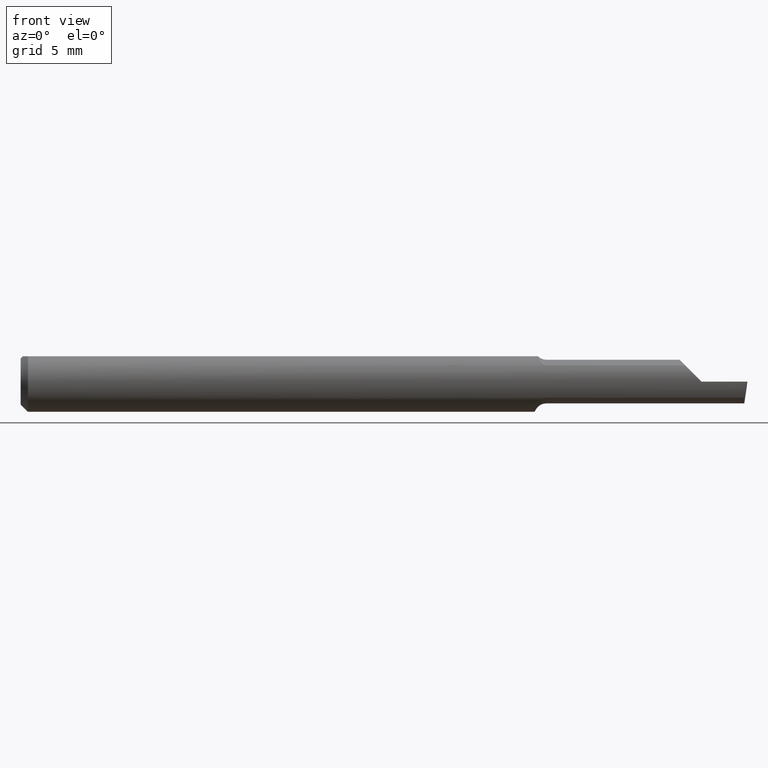
[diagram: clean part render]
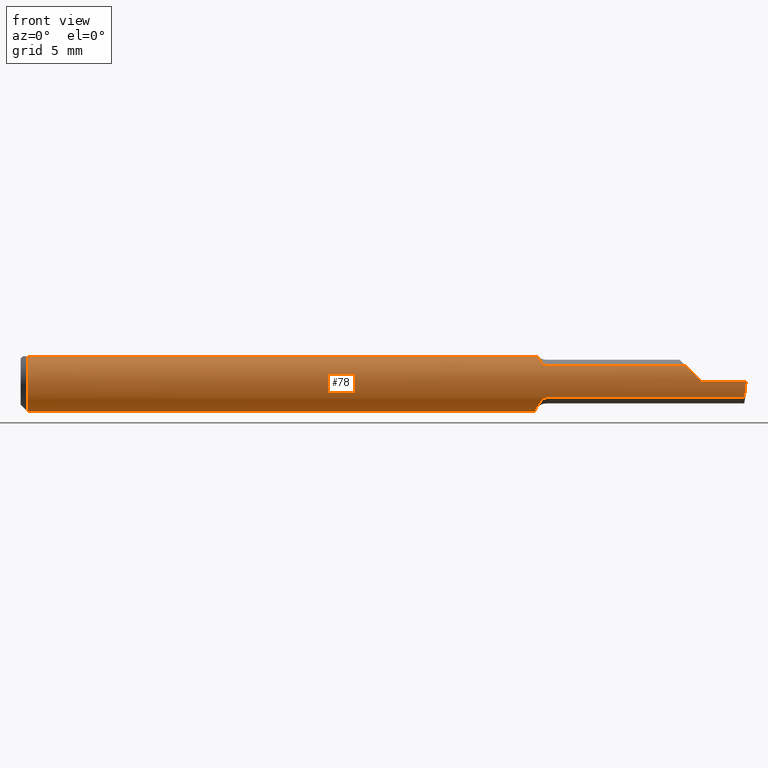
[diagram: same view with one face highlighted and labeled with its STEP entity id]
A machine part, front view. The second image highlights one B-rep face of the part: STEP entity #78.
In plain terms, the highlighted cylindrical surface (edge-blend (fillet) strip) has radius 1.5837 mm, axis along (-1, -0, -0).
Its self-contained STEP definition (entity closure, byte-faithful):
#1 = DIRECTION ( 'NONE',  ( -1.000000000000000000, -0.0000000000000000000, -0.0000000000000000000 ) ) ;
#3 = VECTOR ( 'NONE', #328, 39.37007874015748143 ) ;
#5 = DIRECTION ( 'NONE',  ( 0.0000000000000000000, 0.0000000000000000000, 1.000000000000000000 ) ) ;
#6 = CARTESIAN_POINT ( 'NONE',  ( 1.074327038483182450, -0.04799382633214958893, -0.03989142061000427314 ) ) ;
#9 = CARTESIAN_POINT ( 'NONE',  ( 1.060000000000000275, 0.01155624999999986177, -0.06126969549408177451 ) ) ;
#15 = CARTESIAN_POINT ( 'NONE',  ( 1.074073837407041987, -0.04761084945882111674, 0.04033650601908232020 ) ) ;
#17 = AXIS2_PLACEMENT_3D ( 'NONE', #148, #1, #5 ) ;
#24 = EDGE_CURVE ( 'NONE', #335, #188, #344, .T. ) ;
#30 = B_SPLINE_CURVE_WITH_KNOTS ( 'NONE', 3,
 ( #589, #276, #435, #63, #378, #6, #324, #631, #272, #585, #223, #543, #162, #482 ),
 .UNSPECIFIED., .F., .F.,
 ( 4, 2, 2, 2, 2, 2, 4 ),
 ( 1.960001601931791046E-07, 0.0001315703184465652758, 0.0002629446367329374076, 0.0005256932733056817256, 0.001051190546451170795, 0.001576687819596659648, 0.002102185092742148934 ),
 .UNSPECIFIED. ) ;
#35 = CARTESIAN_POINT ( 'NONE',  ( 0.0000000000000000000, -0.03386738844375222768, 0.05234999999999997988 ) ) ;
#41 = VECTOR ( 'NONE', #346, 39.37007874015748143 ) ;
#62 = VERTEX_POINT ( 'NONE', #357 ) ;
#63 = CARTESIAN_POINT ( 'NONE',  ( 1.078775713346482146, -0.05116520334387903574, -0.03564627526859109191 ) ) ;
#67 = CARTESIAN_POINT ( 'NONE',  ( 0.01500000000000185039, -0.03386738844380016850, 0.05235000000000000070 ) ) ;
#70 = CARTESIAN_POINT ( 'NONE',  ( 1.252500000000000169, -0.05267366071428577351, -0.03336177403790612644 ) ) ;
#71 = ORIENTED_EDGE ( 'NONE', *, *, #376, .F. ) ;
#73 = ORIENTED_EDGE ( 'NONE', *, *, #271, .F. ) ;
#74 = AXIS2_PLACEMENT_3D ( 'NONE', #288, #596, #234 ) ;
#78 = ADVANCED_FACE ( 'NONE', ( #268 ), #88, .T. ) ;
#82 = VERTEX_POINT ( 'NONE', #208 ) ;
#88 = CYLINDRICAL_SURFACE ( 'NONE', #201, 0.06235000000000000264 ) ;
#91 = ORIENTED_EDGE ( 'NONE', *, *, #415, .F. ) ;
#95 = ORIENTED_EDGE ( 'NONE', *, *, #499, .F. ) ;
#96 = VERTEX_POINT ( 'NONE', #414 ) ;
#99 = CARTESIAN_POINT ( 'NONE',  ( 0.0000000000000000000, 0.03386738844375223462, 0.05234999999999997988 ) ) ;
#101 = VERTEX_POINT ( 'NONE', #231 ) ;
#106 = VECTOR ( 'NONE', #196, 39.37007874015748143 ) ;
#109 = CARTESIAN_POINT ( 'NONE',  ( 1.494656860756163663, -0.05903713403021957490, -0.02331472336167221548 ) ) ;
#111 = DIRECTION ( 'NONE',  ( 0.0000000000000000000, 0.0000000000000000000, 1.000000000000000000 ) ) ;
#118 = VERTEX_POINT ( 'NONE', #9 ) ;
#122 = CIRCLE ( 'NONE', #391, 0.06235000000000000264 ) ;
#132 = EDGE_CURVE ( 'NONE', #62, #82, #401, .T. ) ;
#148 = CARTESIAN_POINT ( 'NONE',  ( 0.01500000000000000465, 0.0000000000000000000, 0.0000000000000000000 ) ) ;
#154 = LINE ( 'NONE', #553, #444 ) ;
#155 = CARTESIAN_POINT ( 'NONE',  ( 0.01500000000000000465, 0.0000000000000000000, 0.0000000000000000000 ) ) ;
#160 = EDGE_CURVE ( 'NONE', #266, #355, #398, .T. ) ;
#162 = CARTESIAN_POINT ( 'NONE',  ( 1.059999999999996056, 0.004792881695547039807, -0.06254535345742004426 ) ) ;
#171 = CARTESIAN_POINT ( 'NONE',  ( 1.381685276638327631, -0.05903713403021959572, 0.02331472336167217385 ) ) ;
#177 = CIRCLE ( 'NONE', #74, 0.06235000000000000264 ) ;
#182 = LINE ( 'NONE', #35, #41 ) ;
#188 = VERTEX_POINT ( 'NONE', #67 ) ;
#191 = ORIENTED_EDGE ( 'NONE', *, *, #599, .T. ) ;
#196 = DIRECTION ( 'NONE',  ( 1.000000000000000000, 5.691349986800549142E-18, 0.0000000000000000000 ) ) ;
#201 = AXIS2_PLACEMENT_3D ( 'NONE', #218, #377, #380 ) ;
#206 = VERTEX_POINT ( 'NONE', #420 ) ;
#207 = EDGE_LOOP ( 'NONE', ( #317, #323, #214, #675, #279, #95, #191, #672, #91, #529, #73, #71 ) ) ;
#208 = CARTESIAN_POINT ( 'NONE',  ( 1.497433779686219379, -0.06235000000000005121, 3.231995301756449018E-19 ) ) ;
#211 = EDGE_CURVE ( 'NONE', #62, #206, #459, .T. ) ;
#214 = ORIENTED_EDGE ( 'NONE', *, *, #284, .T. ) ;
#218 = CARTESIAN_POINT ( 'NONE',  ( 0.0000000000000000000, 0.0000000000000000000, 0.0000000000000000000 ) ) ;
#223 = CARTESIAN_POINT ( 'NONE',  ( 1.061648092746324767, -0.01564147840104310530, -0.06074236086770339743 ) ) ;
#231 = CARTESIAN_POINT ( 'NONE',  ( 1.371638225962093838, -0.05267366071428578739, 0.03336177403790611951 ) ) ;
#234 = DIRECTION ( 'NONE',  ( 0.0000000000000000000, 1.000000000000000000, 0.0000000000000000000 ) ) ;
#266 = VERTEX_POINT ( 'NONE', #412 ) ;
#268 = FACE_OUTER_BOUND ( 'NONE', #207, .T. ) ;
#271 = EDGE_CURVE ( 'NONE', #118, #355, #177, .T. ) ;
#272 = CARTESIAN_POINT ( 'NONE',  ( 1.065988988117221536, -0.03406974560157229048, -0.05264335079965579145 ) ) ;
#276 = CARTESIAN_POINT ( 'NONE',  ( 1.083240954672475720, -0.05267366071428582208, -0.03336177403790606399 ) ) ;
#279 = ORIENTED_EDGE ( 'NONE', *, *, #448, .F. ) ;
#281 = CARTESIAN_POINT ( 'NONE',  ( 0.01500000000000000465, 0.0000000000000000000, -0.06235000000000000264 ) ) ;
#284 = EDGE_CURVE ( 'NONE', #82, #96, #154, .T. ) ;
#288 = CARTESIAN_POINT ( 'NONE',  ( 1.060000000000000275, 0.0000000000000000000, 0.0000000000000000000 ) ) ;
#299 = CARTESIAN_POINT ( 'NONE',  ( 1.075661082963681459, -0.04915643512136035759, 0.03841395140597855112 ) ) ;
#317 = ORIENTED_EDGE ( 'NONE', *, *, #211, .F. ) ;
#323 = ORIENTED_EDGE ( 'NONE', *, *, #132, .T. ) ;
#324 = CARTESIAN_POINT ( 'NONE',  ( 1.072612635401776870, -0.04600867268841651869, -0.04219264322731248323 ) ) ;
#328 = DIRECTION ( 'NONE',  ( -1.000000000000000000, -5.691349986800549142E-18, -0.0000000000000000000 ) ) ;
#329 = CARTESIAN_POINT ( 'NONE',  ( 1.060000000000000275, 0.03386738844375224156, 0.05235000000000000070 ) ) ;
#335 = VERTEX_POINT ( 'NONE', #281 ) ;
#343 = CARTESIAN_POINT ( 'NONE',  ( 1.069899083742320345, -0.04251446938472881742, 0.04588310374207918430 ) ) ;
#344 = CIRCLE ( 'NONE', #17, 0.06235000000000000264 ) ;
#346 = DIRECTION ( 'NONE',  ( -1.000000000000000000, -0.0000000000000000000, -0.0000000000000000000 ) ) ;
#354 = EDGE_CURVE ( 'NONE', #96, #101, #471, .T. ) ;
#355 = VERTEX_POINT ( 'NONE', #329 ) ;
#357 = CARTESIAN_POINT ( 'NONE',  ( 1.493589448587071544, -0.05267366071428577351, -0.03336177403790612644 ) ) ;
#364 = LINE ( 'NONE', #512, #106 ) ;
#365 = VECTOR ( 'NONE', #532, 39.37007874015748143 ) ;
#376 = EDGE_CURVE ( 'NONE', #206, #118, #30, .T. ) ;
#377 = DIRECTION ( 'NONE',  ( -1.000000000000000000, -0.0000000000000000000, -0.0000000000000000000 ) ) ;
#378 = CARTESIAN_POINT ( 'NONE',  ( 1.077568494155622725, -0.05043275970182654888, -0.03668598949093540562 ) ) ;
#380 = DIRECTION ( 'NONE',  ( 0.0000000000000000000, 0.0000000000000000000, 1.000000000000000000 ) ) ;
#384 = CARTESIAN_POINT ( 'NONE',  ( 1.393107270290912858, -0.06235000000000000264, 0.01189272970908752079 ) ) ;
#391 = AXIS2_PLACEMENT_3D ( 'NONE', #155, #476, #111 ) ;
#398 = LINE ( 'NONE', #99, #365 ) ;
#401 =( BOUNDED_CURVE ( )  B_SPLINE_CURVE ( 3, ( #624, #109, #528, #525 ),
 .UNSPECIFIED., .F., .F. ) 
 B_SPLINE_CURVE_WITH_KNOTS ( ( 4, 4 ),
 ( 0.7961532496683338955, 1.360746882514885181 ),
 .UNSPECIFIED. ) 
 CURVE ( )  GEOMETRIC_REPRESENTATION_ITEM ( )  RATIONAL_B_SPLINE_CURVE ( ( 1.000000000000000000, 0.9736121104788255654, 0.9736121104788255654, 1.000000000000000000 ) ) 
 REPRESENTATION_ITEM ( '' )  );
#412 = CARTESIAN_POINT ( 'NONE',  ( 0.01500000000000000465, 0.03386738844375223462, 0.05234999999999997988 ) ) ;
#414 = CARTESIAN_POINT ( 'NONE',  ( 1.405000000000000249, -0.06235000000000005121, 1.163414459189985436E-17 ) ) ;
#415 = EDGE_CURVE ( 'NONE', #266, #335, #122, .T. ) ;
#420 = CARTESIAN_POINT ( 'NONE',  ( 1.085000000000000187, -0.05267366071428582208, -0.03336177403790606399 ) ) ;
#425 = CARTESIAN_POINT ( 'NONE',  ( 1.066182189689074633, -0.03386738844375222074, 0.05235000000000000070 ) ) ;
#426 = VERTEX_POINT ( 'NONE', #425 ) ;
#435 = CARTESIAN_POINT ( 'NONE',  ( 1.081592203943254615, -0.05228879390856558396, -0.03397671269166894353 ) ) ;
#444 = VECTOR ( 'NONE', #645, 39.37007874015748143 ) ;
#448 = EDGE_CURVE ( 'NONE', #479, #101, #364, .T. ) ;
#451 = B_SPLINE_CURVE_WITH_KNOTS ( 'NONE', 3,
 ( #592, #652, #343, #15, #299, #659, #656, #511, #508, #492 ),
 .UNSPECIFIED., .F., .F.,
 ( 4, 2, 2, 2, 4 ),
 ( 3.797231421916798275E-07, 0.0004333373953855909145, 0.0006498162315072879497, 0.0007580556495681328895, 0.0008662950676289779377 ),
 .UNSPECIFIED. ) ;
#459 = LINE ( 'NONE', #70, #3 ) ;
#471 =( BOUNDED_CURVE ( )  B_SPLINE_CURVE ( 3, ( #635, #384, #171, #486 ),
 .UNSPECIFIED., .F., .T. ) 
 B_SPLINE_CURVE_WITH_KNOTS ( ( 4, 4 ),
 ( 4.712388980384689674, 5.276982613231239405 ),
 .UNSPECIFIED. ) 
 CURVE ( )  GEOMETRIC_REPRESENTATION_ITEM ( )  RATIONAL_B_SPLINE_CURVE ( ( 1.000000000000000000, 0.9736121104788257874, 0.9736121104788257874, 1.000000000000000000 ) ) 
 REPRESENTATION_ITEM ( '' )  );
#476 = DIRECTION ( 'NONE',  ( -1.000000000000000000, -0.0000000000000000000, -0.0000000000000000000 ) ) ;
#479 = VERTEX_POINT ( 'NONE', #542 ) ;
#482 = CARTESIAN_POINT ( 'NONE',  ( 1.060000000000000275, 0.01155624999999986177, -0.06126969549408177451 ) ) ;
#486 = CARTESIAN_POINT ( 'NONE',  ( 1.371638225962093838, -0.05267366071428578739, 0.03336177403790611951 ) ) ;
#492 = CARTESIAN_POINT ( 'NONE',  ( 1.085000000000000187, -0.05267366071428583596, 0.03336177403790603624 ) ) ;
#499 = EDGE_CURVE ( 'NONE', #426, #479, #451, .T. ) ;
#508 = CARTESIAN_POINT ( 'NONE',  ( 1.083537604150741629, -0.05267366071513952114, 0.03336177403655851692 ) ) ;
#511 = CARTESIAN_POINT ( 'NONE',  ( 1.082134555967766865, -0.05240678568573016449, 0.03378794548805856557 ) ) ;
#512 = CARTESIAN_POINT ( 'NONE',  ( 1.252500000000000169, -0.05267366071428577351, 0.03336177403790612644 ) ) ;
#525 = CARTESIAN_POINT ( 'NONE',  ( 1.497433779686219379, -0.06235000000000005121, 3.231995301756449018E-19 ) ) ;
#528 = CARTESIAN_POINT ( 'NONE',  ( 1.495973035530412831, -0.06235000000000003734, -0.01189272970908753987 ) ) ;
#529 = ORIENTED_EDGE ( 'NONE', *, *, #160, .T. ) ;
#532 = DIRECTION ( 'NONE',  ( 1.000000000000000000, 0.0000000000000000000, 0.0000000000000000000 ) ) ;
#542 = CARTESIAN_POINT ( 'NONE',  ( 1.085000000000000187, -0.05267366071428583596, 0.03336177403790603624 ) ) ;
#543 = CARTESIAN_POINT ( 'NONE',  ( 1.060276440363477235, -0.002103274276245940214, -0.06268864719924564788 ) ) ;
#553 = CARTESIAN_POINT ( 'NONE',  ( 2.249639673992788601E-32, -0.06234999999999999570, 1.836970198721030427E-16 ) ) ;
#585 = CARTESIAN_POINT ( 'NONE',  ( 1.062728993423048385, -0.02215482600002538494, -0.05866202889160988809 ) ) ;
#589 = CARTESIAN_POINT ( 'NONE',  ( 1.085000000000000187, -0.05267366071428582208, -0.03336177403790606399 ) ) ;
#592 = CARTESIAN_POINT ( 'NONE',  ( 1.066182189689074633, -0.03386738844375222074, 0.05235000000000000070 ) ) ;
#596 = DIRECTION ( 'NONE',  ( 1.000000000000000000, 5.691349986800549142E-18, 0.0000000000000000000 ) ) ;
#599 = EDGE_CURVE ( 'NONE', #426, #188, #182, .T. ) ;
#624 = CARTESIAN_POINT ( 'NONE',  ( 1.493589448587071544, -0.05267366071428577351, -0.03336177403790612644 ) ) ;
#631 = CARTESIAN_POINT ( 'NONE',  ( 1.068132745576696019, -0.03943215935316551901, -0.04868886658133501216 ) ) ;
#635 = CARTESIAN_POINT ( 'NONE',  ( 1.405000000000000249, -0.06235000000000005121, 1.163414459189985436E-17 ) ) ;
#645 = DIRECTION ( 'NONE',  ( -1.000000000000000000, -0.0000000000000000000, -0.0000000000000000000 ) ) ;
#652 = CARTESIAN_POINT ( 'NONE',  ( 1.067873522747514015, -0.03849383661596392919, 0.04935695859860204232 ) ) ;
#656 = CARTESIAN_POINT ( 'NONE',  ( 1.079654899318486461, -0.05157034440792586383, 0.03505133412385297992 ) ) ;
#659 = CARTESIAN_POINT ( 'NONE',  ( 1.078587721903973895, -0.05102224570557683386, 0.03585204334870999848 ) ) ;
#672 = ORIENTED_EDGE ( 'NONE', *, *, #24, .F. ) ;
#675 = ORIENTED_EDGE ( 'NONE', *, *, #354, .T. ) ;